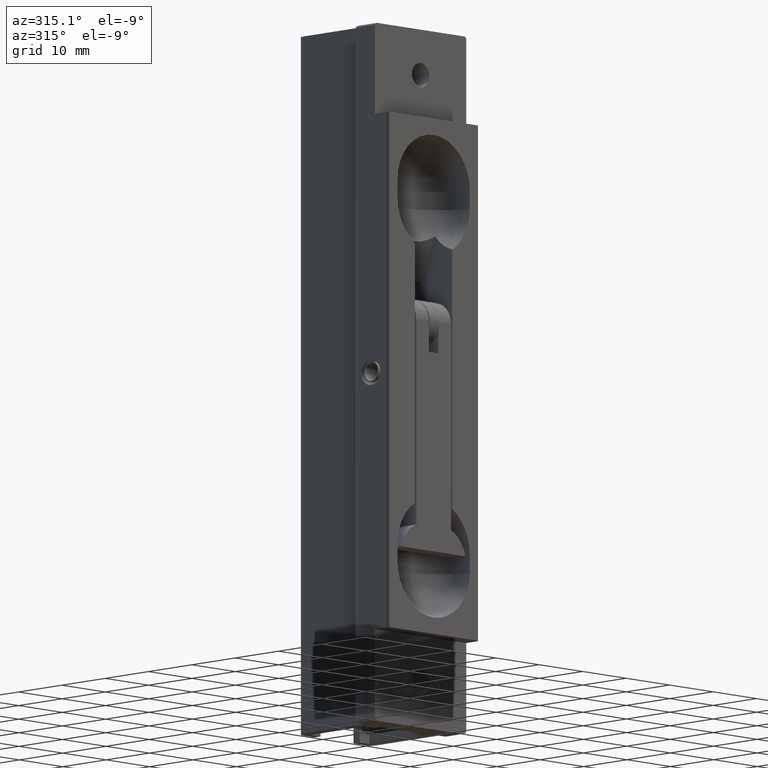
[diagram: clean part render]
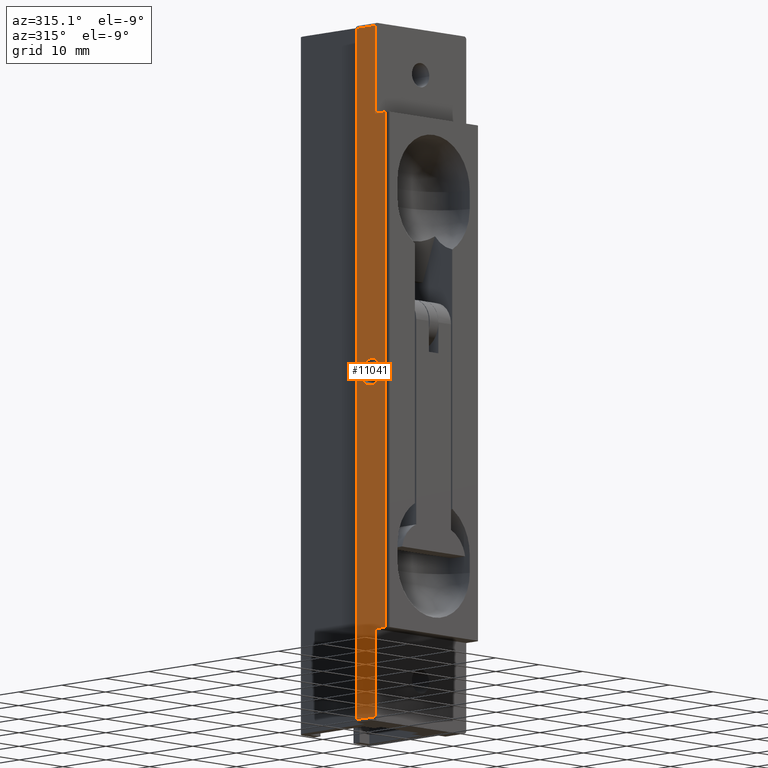
[diagram: same view with one face highlighted and labeled with its STEP entity id]
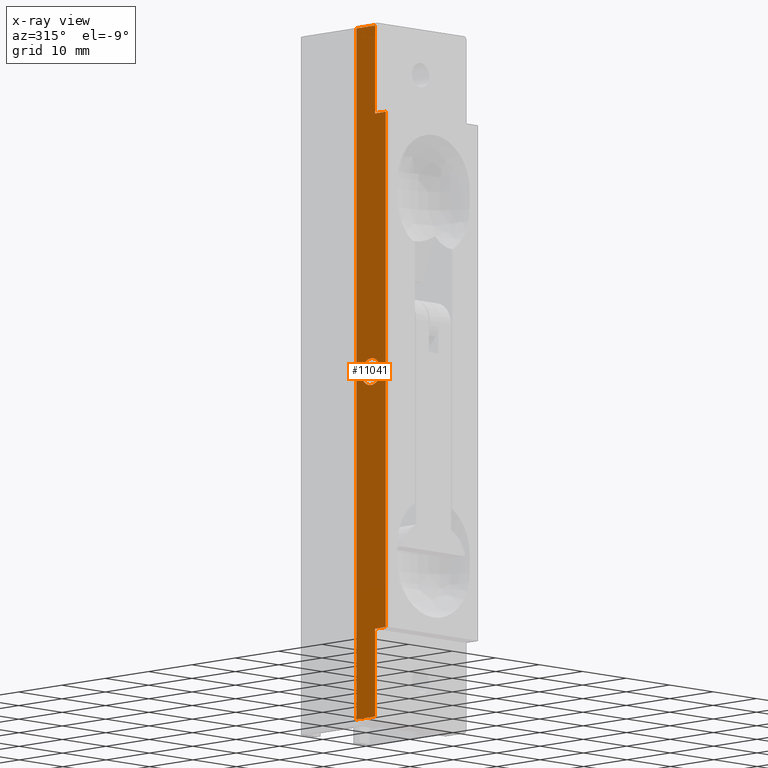
[diagram: x-ray of the same camera — body ghosted, the highlighted face saturated]
A machine part, auxiliary view. The second image highlights one B-rep face of the part: STEP entity #11041.
The next image is the same camera in x-ray: the body ghosted, the highlighted face saturated — about 0% of this face is hidden behind the body in this view.
In plain terms, the highlighted face is a freeform B-spline surface patch.
Its self-contained STEP definition (entity closure, byte-faithful):
#8167=CARTESIAN_POINT('',(-10.500000000333770,-13.795217367057020,0.144985215935795));
#8168=VERTEX_POINT('',#8167);
#8174=CARTESIAN_POINT('',(-10.500000000000000,-11.600000000000000,2.200000000000045));
#8175=VERTEX_POINT('',#8174);
#8176=CARTESIAN_POINT('',(-10.500000000000000,-11.600000000000000,2.200000000000045));
#8177=CARTESIAN_POINT('',(-10.500000000000004,-13.659491961160249,2.200000000000044));
#8178=CARTESIAN_POINT('',(-10.500000000333774,-13.795217367057020,0.144985215935795));
#8186=(BOUNDED_CURVE()B_SPLINE_CURVE(2,(#8176,#8177,#8178),.UNSPECIFIED.,.F.,.U.)B_SPLINE_CURVE_WITH_KNOTS((3,3),(0.500000000000000,0.738494526676198),.UNSPECIFIED.)CURVE()GEOMETRIC_REPRESENTATION_ITEM()RATIONAL_B_SPLINE_CURVE((1.0,0.720586281649670,0.974281703337729))REPRESENTATION_ITEM(''));
#8187=EDGE_CURVE('',#8175,#8168,#8186,.T.);
#8189=CARTESIAN_POINT('',(-10.500000000293920,-9.400083768983826,-0.019198380268477));
#8190=VERTEX_POINT('',#8189);
#8191=CARTESIAN_POINT('',(-10.500000000293920,-9.400083768983826,-0.019198380268477));
#8192=CARTESIAN_POINT('',(-10.500000000000002,-9.399999999999956,-0.009599373975157));
#8193=CARTESIAN_POINT('',(-10.500000000000000,-9.399999999999954,-4.440892E-016));
#8194=CARTESIAN_POINT('',(-10.500000000000000,-9.399999999999954,2.200000000000045));
#8195=CARTESIAN_POINT('',(-10.500000000000000,-11.600000000000000,2.200000000000045));
#8203=(BOUNDED_CURVE()B_SPLINE_CURVE(2,(#8191,#8192,#8193,#8194,#8195),.UNSPECIFIED.,.F.,.U.)B_SPLINE_CURVE_WITH_KNOTS((3,2,3),(0.248460105317600,0.250000000000000,0.500000000000000),.UNSPECIFIED.)CURVE()GEOMETRIC_REPRESENTATION_ITEM()RATIONAL_B_SPLINE_CURVE((0.996414027296395,0.998195901159352,1.0,0.707106781186547,1.0))REPRESENTATION_ITEM(''));
#8204=EDGE_CURVE('',#8190,#8175,#8203,.T.);
#8314=CARTESIAN_POINT('',(-10.500000000000000,-11.600000000000000,-2.200000000000046));
#8315=VERTEX_POINT('',#8314);
#8316=CARTESIAN_POINT('',(-10.500000000000000,-11.600000000000000,-2.200000000000046));
#8317=CARTESIAN_POINT('',(-10.500000000000000,-9.419115340992608,-2.200000000000045));
#8318=CARTESIAN_POINT('',(-10.500000000293920,-9.400083768983826,-0.019198380268477));
#8326=(BOUNDED_CURVE()B_SPLINE_CURVE(2,(#8316,#8317,#8318),.UNSPECIFIED.,.F.,.U.)B_SPLINE_CURVE_WITH_KNOTS((3,3),(0.0,0.248460105317600),.UNSPECIFIED.)CURVE()GEOMETRIC_REPRESENTATION_ITEM()RATIONAL_B_SPLINE_CURVE((1.0,0.708910880027195,0.996414027296395))REPRESENTATION_ITEM(''));
#8327=EDGE_CURVE('',#8315,#8190,#8326,.T.);
#8329=CARTESIAN_POINT('',(-10.500000000333769,-13.795217367057022,0.144985215935795));
#8330=CARTESIAN_POINT('',(-10.500000000000005,-13.800000000000045,0.072571491686378));
#8331=CARTESIAN_POINT('',(-10.500000000000000,-13.800000000000050,-4.440892E-016));
#8332=CARTESIAN_POINT('',(-10.500000000000000,-13.800000000000045,-2.200000000000046));
#8333=CARTESIAN_POINT('',(-10.500000000000000,-11.600000000000000,-2.200000000000046));
#8341=(BOUNDED_CURVE()B_SPLINE_CURVE(2,(#8329,#8330,#8331,#8332,#8333),.UNSPECIFIED.,.F.,.U.)B_SPLINE_CURVE_WITH_KNOTS((3,2,3),(0.738494526676199,0.750000000000000,1.0),.UNSPECIFIED.)CURVE()GEOMETRIC_REPRESENTATION_ITEM()RATIONAL_B_SPLINE_CURVE((0.974281703337730,0.986520499536879,1.0,0.707106781186547,1.0))REPRESENTATION_ITEM(''));
#8342=EDGE_CURVE('',#8168,#8315,#8341,.T.);
#9057=CARTESIAN_POINT('',(-10.500000000000000,-8.200000000000001,57.0));
#9058=VERTEX_POINT('',#9057);
#9104=CARTESIAN_POINT('',(-10.500000000000000,-12.500000000000000,57.0));
#9105=VERTEX_POINT('',#9104);
#9106=CARTESIAN_POINT('',(-10.500000000000000,-12.500000000000000,57.0));
#9107=CARTESIAN_POINT('',(-10.500000000000000,-8.200000000000001,57.0));
#9108=QUASI_UNIFORM_CURVE('',1,(#9106,#9107),.UNSPECIFIED.,.F.,.U.);
#9109=EDGE_CURVE('',#9105,#9058,#9108,.T.);
#9543=CARTESIAN_POINT('',(-10.500000000000000,-8.200000000000001,-57.0));
#9544=VERTEX_POINT('',#9543);
#9589=CARTESIAN_POINT('',(-10.500000000000000,-12.500000000000000,-57.0));
#9590=VERTEX_POINT('',#9589);
#9606=CARTESIAN_POINT('',(-10.500000000000000,-8.200000000000001,-57.0));
#9607=CARTESIAN_POINT('',(-10.500000000000000,-12.500000000000000,-57.0));
#9608=QUASI_UNIFORM_CURVE('',1,(#9606,#9607),.UNSPECIFIED.,.F.,.U.);
#9609=EDGE_CURVE('',#9544,#9590,#9608,.T.);
#9640=CARTESIAN_POINT('',(-10.500000000000000,-8.200000000000001,57.0));
#9641=CARTESIAN_POINT('',(-10.500000000000000,-8.200000000000001,-57.0));
#9642=QUASI_UNIFORM_CURVE('',1,(#9640,#9641),.UNSPECIFIED.,.F.,.U.);
#9643=EDGE_CURVE('',#9058,#9544,#9642,.T.);
#9665=CARTESIAN_POINT('',(-10.500000000000000,-15.0,-42.500000000000000));
#9666=VERTEX_POINT('',#9665);
#9687=CARTESIAN_POINT('',(-10.500000000000000,-15.0,42.500000000000000));
#9688=VERTEX_POINT('',#9687);
#9702=CARTESIAN_POINT('',(-10.500000000000000,-15.0,-42.500000000000000));
#9703=CARTESIAN_POINT('',(-10.500000000000000,-15.0,42.500000000000000));
#9704=QUASI_UNIFORM_CURVE('',1,(#9702,#9703),.UNSPECIFIED.,.F.,.U.);
#9705=EDGE_CURVE('',#9666,#9688,#9704,.T.);
#10301=CARTESIAN_POINT('',(-10.500000000000000,-12.500000000000000,42.500000000000000));
#10302=VERTEX_POINT('',#10301);
#10303=CARTESIAN_POINT('',(-10.500000000000000,-12.500000000000000,42.500000000000000));
#10304=CARTESIAN_POINT('',(-10.500000000000000,-12.500000000000000,57.0));
#10305=QUASI_UNIFORM_CURVE('',1,(#10303,#10304),.UNSPECIFIED.,.F.,.U.);
#10306=EDGE_CURVE('',#10302,#9105,#10305,.T.);
#10347=CARTESIAN_POINT('',(-10.500000000000000,-12.500000000000000,42.500000000000000));
#10348=CARTESIAN_POINT('',(-10.500000000000000,-15.0,42.500000000000000));
#10349=QUASI_UNIFORM_CURVE('',1,(#10347,#10348),.UNSPECIFIED.,.F.,.U.);
#10350=EDGE_CURVE('',#10302,#9688,#10349,.T.);
#10361=CARTESIAN_POINT('',(-10.500000000000000,-12.500000000000000,-42.500000000000000));
#10362=VERTEX_POINT('',#10361);
#10363=CARTESIAN_POINT('',(-10.500000000000000,-12.500000000000000,-42.500000000000000));
#10364=CARTESIAN_POINT('',(-10.500000000000000,-12.500000000000000,-57.0));
#10365=QUASI_UNIFORM_CURVE('',1,(#10363,#10364),.UNSPECIFIED.,.F.,.U.);
#10366=EDGE_CURVE('',#10362,#9590,#10365,.T.);
#10413=CARTESIAN_POINT('',(-10.500000000000000,-12.500000000000000,-42.500000000000000));
#10414=CARTESIAN_POINT('',(-10.500000000000000,-15.0,-42.500000000000000));
#10415=QUASI_UNIFORM_CURVE('',1,(#10413,#10414),.UNSPECIFIED.,.F.,.U.);
#10416=EDGE_CURVE('',#10362,#9666,#10415,.T.);
#11020=CARTESIAN_POINT('',(-10.500000000000000,-15.339659986820280,62.694299779045892));
#11021=CARTESIAN_POINT('',(-10.500000000000000,-15.339659986820280,-62.694302836764173));
#11022=CARTESIAN_POINT('',(-10.500000000000000,-7.860339830789508,62.694299779045892));
#11023=CARTESIAN_POINT('',(-10.500000000000000,-7.860339830789508,-62.694302836764173));
#11024=B_SPLINE_SURFACE_WITH_KNOTS('',1,1,((#11020,#11022),(#11021,#11023)),.UNSPECIFIED.,.F.,.F.,.U.,(2,2),(2,2),(0.0,125.388602615810000),(0.0,7.479320156030771),.UNSPECIFIED.);
#11025=ORIENTED_EDGE('',*,*,#9643,.T.);
#11026=ORIENTED_EDGE('',*,*,#9609,.T.);
#11027=ORIENTED_EDGE('',*,*,#10366,.F.);
#11028=ORIENTED_EDGE('',*,*,#10416,.T.);
#11029=ORIENTED_EDGE('',*,*,#9705,.T.);
#11030=ORIENTED_EDGE('',*,*,#10350,.F.);
#11031=ORIENTED_EDGE('',*,*,#10306,.T.);
#11032=ORIENTED_EDGE('',*,*,#9109,.T.);
#11033=EDGE_LOOP('',(#11025,#11026,#11027,#11028,#11029,#11030,#11031,#11032));
#11034=FACE_OUTER_BOUND('',#11033,.T.);
#11035=ORIENTED_EDGE('',*,*,#8327,.T.);
#11036=ORIENTED_EDGE('',*,*,#8204,.T.);
#11037=ORIENTED_EDGE('',*,*,#8187,.T.);
#11038=ORIENTED_EDGE('',*,*,#8342,.T.);
#11039=EDGE_LOOP('',(#11035,#11036,#11037,#11038));
#11040=FACE_BOUND('',#11039,.T.);
#11041=ADVANCED_FACE('',(#11034,#11040),#11024,.F.);